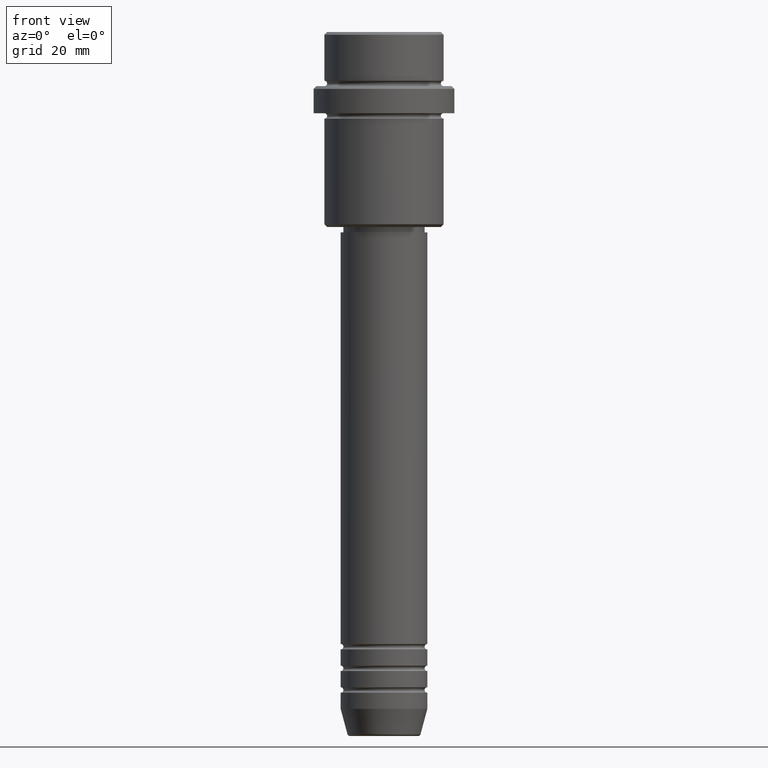
[diagram: clean part render]
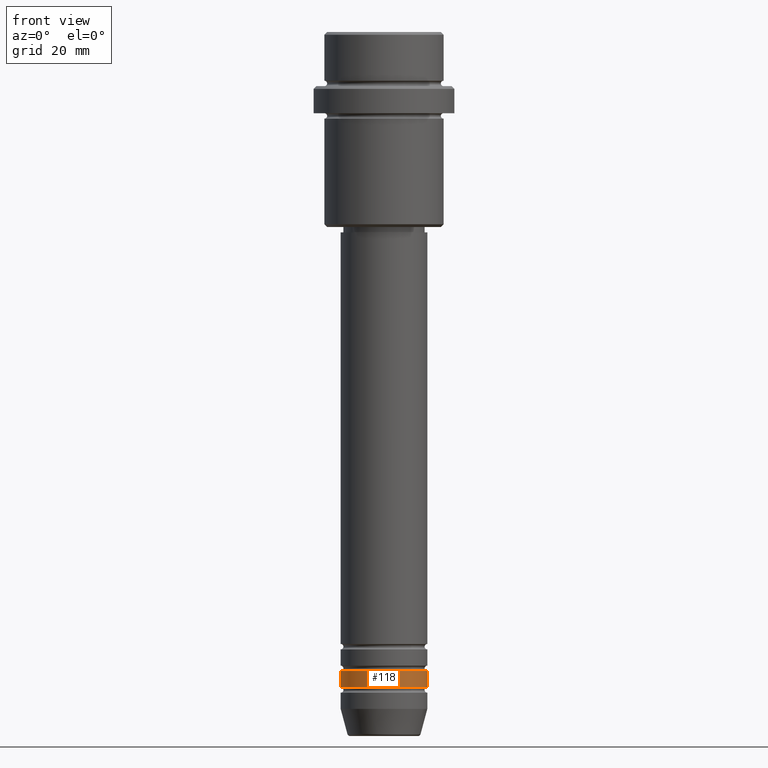
[diagram: same view with one face highlighted and labeled with its STEP entity id]
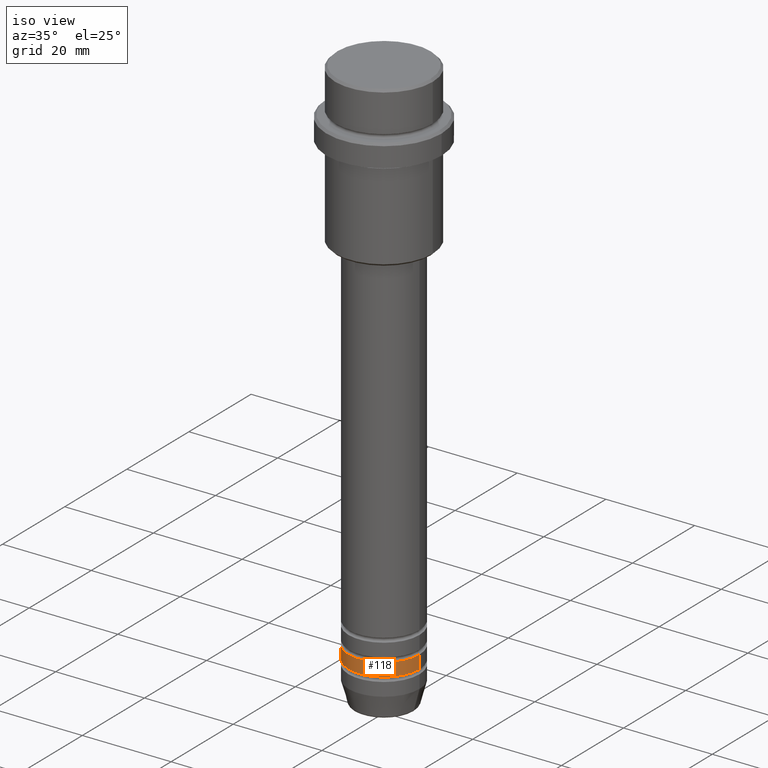
[diagram: same view with one face highlighted and labeled with its STEP entity id]
A machine part, front view. The second image highlights one B-rep face of the part: STEP entity #118.
A second angle (iso view) of the same face is appended — the face is thin or edge-on in the first view.
In plain terms, the highlighted cylindrical surface (partial cylindrical patch) has radius 8 mm, axis along (-0, -0, 1).
Its self-contained STEP definition (entity closure, byte-faithful):
#58 = CARTESIAN_POINT ( 'NONE',  ( -8.000000000000000000, 9.797174393178825657E-16, -120.9999999999998863 ) ) ;
#77 = AXIS2_PLACEMENT_3D ( 'NONE', #760, #1391, #1198 ) ;
#118 = ADVANCED_FACE ( 'NONE', ( #659 ), #1318, .T. ) ;
#121 = DIRECTION ( 'NONE',  ( -0.000000000000000000, -0.000000000000000000, 1.000000000000000000 ) ) ;
#134 = ORIENTED_EDGE ( 'NONE', *, *, #807, .T. ) ;
#173 = CARTESIAN_POINT ( 'NONE',  ( 8.000000000000000000, 0.000000000000000000, -117.9999999999998863 ) ) ;
#178 = VERTEX_POINT ( 'NONE', #563 ) ;
#266 = AXIS2_PLACEMENT_3D ( 'NONE', #731, #1303, #968 ) ;
#302 = VERTEX_POINT ( 'NONE', #58 ) ;
#385 = CARTESIAN_POINT ( 'NONE',  ( 8.000000000000000000, 0.000000000000000000, -120.9999999999998863 ) ) ;
#433 = LINE ( 'NONE', #751, #629 ) ;
#513 = ORIENTED_EDGE ( 'NONE', *, *, #937, .T. ) ;
#563 = CARTESIAN_POINT ( 'NONE',  ( -8.000000000000000000, 9.797174393178825657E-16, -117.9999999999998863 ) ) ;
#629 = VECTOR ( 'NONE', #1079, 1000.000000000000000 ) ;
#648 = VERTEX_POINT ( 'NONE', #173 ) ;
#659 = FACE_OUTER_BOUND ( 'NONE', #999, .T. ) ;
#669 = ORIENTED_EDGE ( 'NONE', *, *, #1310, .F. ) ;
#694 = VECTOR ( 'NONE', #1144, 1000.000000000000000 ) ;
#695 = LINE ( 'NONE', #902, #694 ) ;
#731 = CARTESIAN_POINT ( 'NONE',  ( 0.000000000000000000, 0.000000000000000000, -117.9999999999998863 ) ) ;
#751 = CARTESIAN_POINT ( 'NONE',  ( -8.000000000000000000, 9.797174393178825657E-16, 0.000000000000000000 ) ) ;
#760 = CARTESIAN_POINT ( 'NONE',  ( 0.000000000000000000, 0.000000000000000000, -120.9999999999998863 ) ) ;
#771 = CIRCLE ( 'NONE', #77, 8.000000000000000000 ) ;
#807 = EDGE_CURVE ( 'NONE', #1232, #648, #695, .T. ) ;
#842 = ORIENTED_EDGE ( 'NONE', *, *, #1348, .F. ) ;
#890 = DIRECTION ( 'NONE',  ( 1.000000000000000000, 0.000000000000000000, 0.000000000000000000 ) ) ;
#902 = CARTESIAN_POINT ( 'NONE',  ( 8.000000000000000000, 0.000000000000000000, 0.000000000000000000 ) ) ;
#932 = AXIS2_PLACEMENT_3D ( 'NONE', #1125, #121, #890 ) ;
#937 = EDGE_CURVE ( 'NONE', #302, #1232, #771, .T. ) ;
#968 = DIRECTION ( 'NONE',  ( 1.000000000000000000, 0.000000000000000000, 0.000000000000000000 ) ) ;
#980 = CIRCLE ( 'NONE', #266, 8.000000000000000000 ) ;
#999 = EDGE_LOOP ( 'NONE', ( #669, #513, #134, #842 ) ) ;
#1079 = DIRECTION ( 'NONE',  ( -0.000000000000000000, -0.000000000000000000, 1.000000000000000000 ) ) ;
#1125 = CARTESIAN_POINT ( 'NONE',  ( 0.000000000000000000, 0.000000000000000000, 0.000000000000000000 ) ) ;
#1144 = DIRECTION ( 'NONE',  ( -0.000000000000000000, -0.000000000000000000, 1.000000000000000000 ) ) ;
#1198 = DIRECTION ( 'NONE',  ( 1.000000000000000000, 0.000000000000000000, 0.000000000000000000 ) ) ;
#1232 = VERTEX_POINT ( 'NONE', #385 ) ;
#1303 = DIRECTION ( 'NONE',  ( -0.000000000000000000, -0.000000000000000000, 1.000000000000000000 ) ) ;
#1310 = EDGE_CURVE ( 'NONE', #302, #178, #433, .T. ) ;
#1318 = CYLINDRICAL_SURFACE ( 'NONE', #932, 8.000000000000000000 ) ;
#1348 = EDGE_CURVE ( 'NONE', #178, #648, #980, .T. ) ;
#1391 = DIRECTION ( 'NONE',  ( -0.000000000000000000, -0.000000000000000000, 1.000000000000000000 ) ) ;